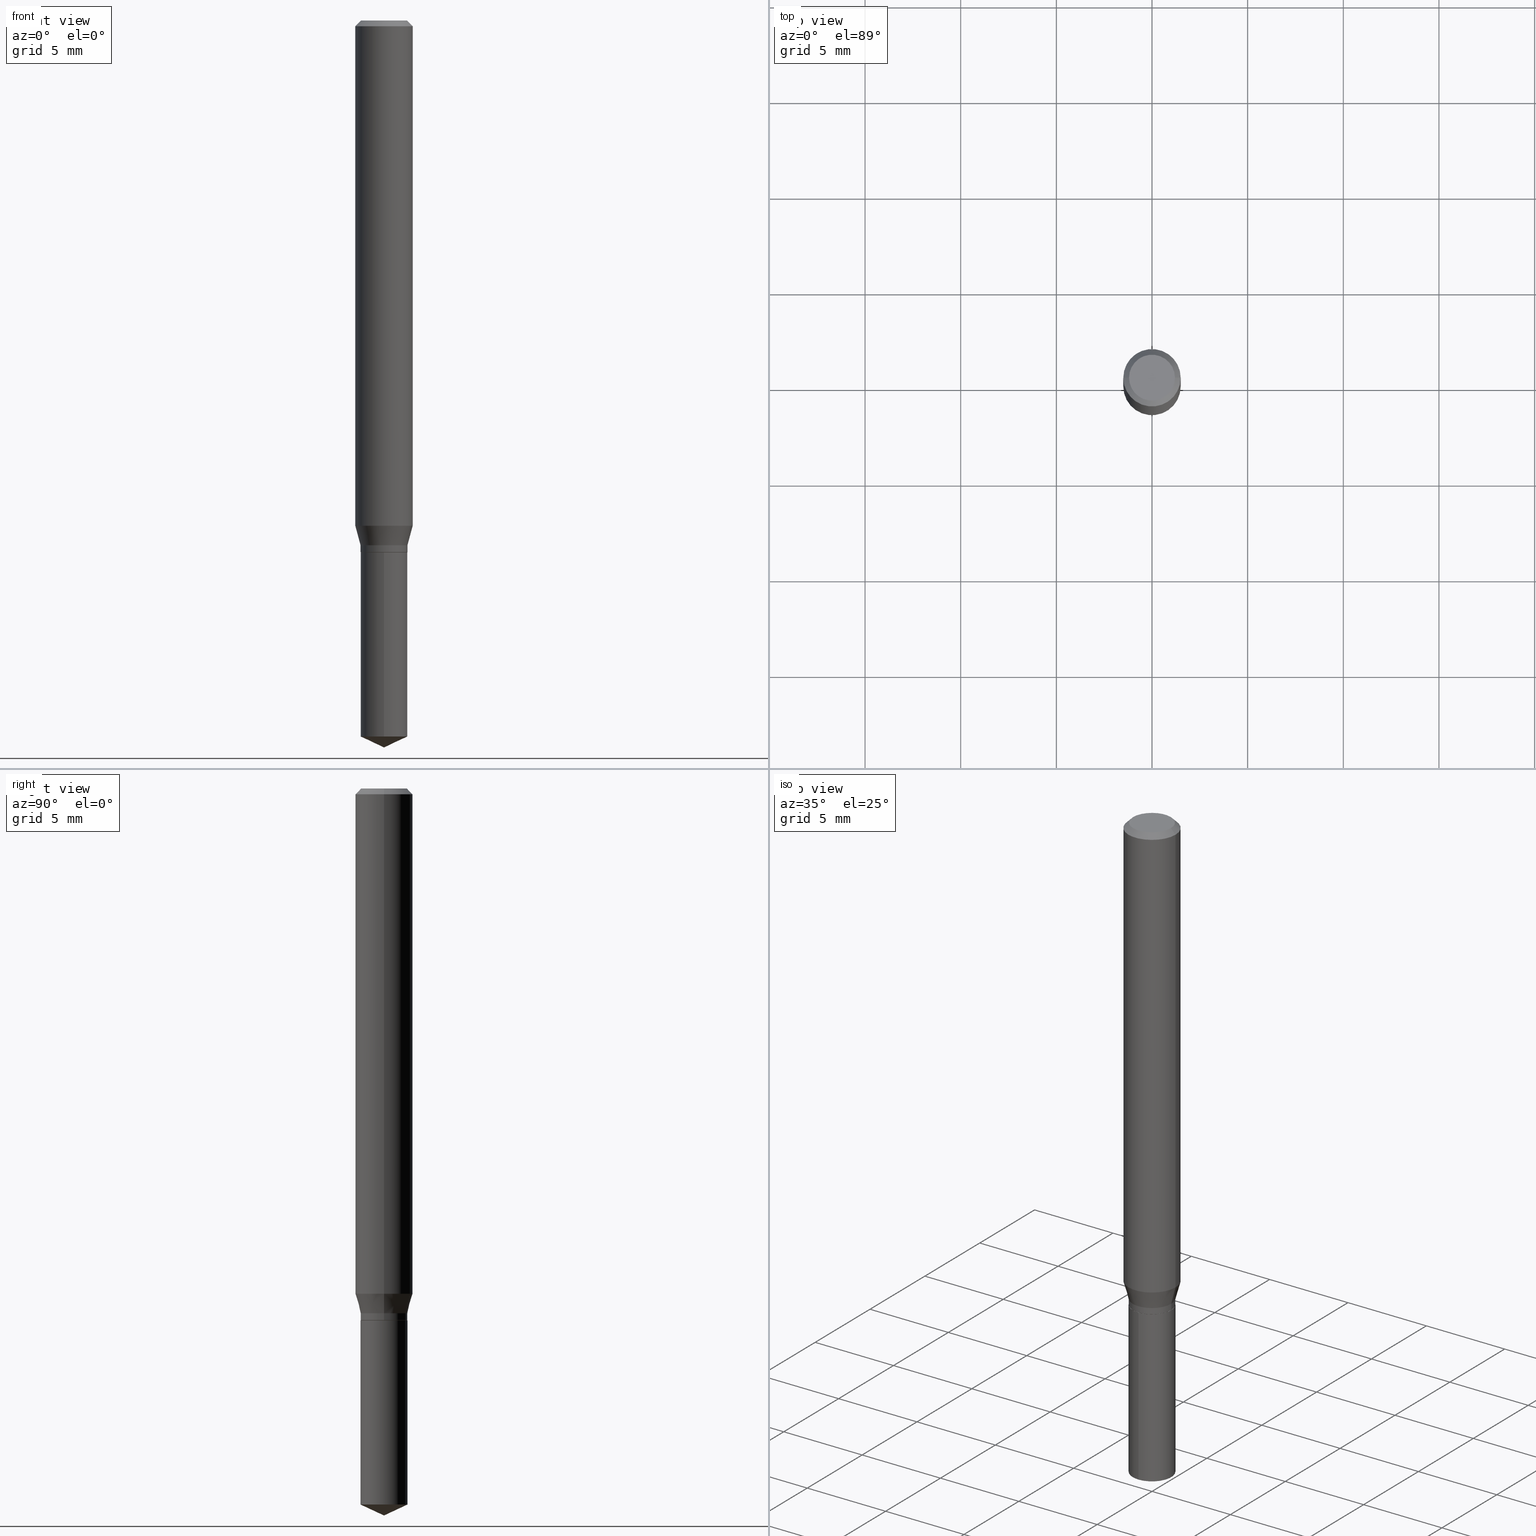
[diagram: canonical four-view strip — front | top / right | iso, engineering-drawing reading convention]
A machine part, canonical four-view strip (front | top / right | iso — engineering-drawing reading convention). The complete STEP part file that produces these views, byte-faithful:
ISO-10303-21;
HEADER;
FILE_DESCRIPTION (( 'STEP AP203' ),
    '1' );
FILE_NAME ('08387.STEP',
    '2024-04-24T14:48:37',
    ( '' ),
    ( '' ),
    'SwSTEP 2.0',
    'SolidWorks 2023',
    '' );
FILE_SCHEMA (( 'CONFIG_CONTROL_DESIGN' ));
ENDSEC;

DATA;
#1 = EDGE_CURVE ( 'NONE', #246, #277, #376, .T. ) ;
#2 = DIRECTION ( 'NONE',  ( -2.445468806185136597E-29, 3.491481338843145583E-15, 1.000000000000000000 ) ) ;
#3 = PLANE ( 'NONE',  #188 ) ;
#4 = VECTOR ( 'NONE', #69, 39.37007874015748143 ) ;
#5 = CARTESIAN_POINT ( 'NONE',  ( 0.05905000000000013016, -4.042415625965365299E-15, -1.039693851278255643 ) ) ;
#6 = APPROVAL ( #57, 'UNSPECIFIED' ) ;
#7 = CARTESIAN_POINT ( 'NONE',  ( 0.04775000000000000078, -4.154862793223341788E-15, -1.094499999999999806 ) ) ;
#8 = DATE_AND_TIME ( #349, #225 ) ;
#9 = ORIENTED_EDGE ( 'NONE', *, *, #34, .T. ) ;
#10 = CARTESIAN_POINT ( 'NONE',  ( -3.369279491983355948E-16, -0.04825000000000382455, -1.094499999999999806 ) ) ;
#11 = APPROVAL_PERSON_ORGANIZATION ( #385, #6, #59 ) ;
#12 = FACE_OUTER_BOUND ( 'NONE', #275, .T. ) ;
#13 = DIMENSIONAL_EXPONENTS ( 1.000000000000000000, 0.000000000000000000, 0.000000000000000000, 0.000000000000000000, 0.000000000000000000, 0.000000000000000000, 0.000000000000000000 ) ;
#14 = EDGE_LOOP ( 'NONE', ( #51, #307, #134, #141 ) ) ;
#15 = CC_DESIGN_PERSON_AND_ORGANIZATION_ASSIGNMENT ( #165, #235, ( #201 ) ) ;
#16 = PERSON_AND_ORGANIZATION ( #138, #317 ) ;
#17 = COORDINATED_UNIVERSAL_TIME_OFFSET ( 5, 0, .BEHIND. ) ;
#18 = CIRCLE ( 'NONE', #366, 0.05904999999999999832 ) ;
#19 = ORIENTED_EDGE ( 'NONE', *, *, #459, .F. ) ;
#20 = DIRECTION ( 'NONE',  ( 1.000000000000000000, -6.982962677686269866E-15, 0.000000000000000000 ) ) ;
#21 = AXIS2_PLACEMENT_3D ( 'NONE', #70, #409, #284 ) ;
#22 = DIRECTION ( 'NONE',  ( -2.445468806185136597E-29, 3.491481338843145583E-15, 1.000000000000000000 ) ) ;
#23 = ORIENTED_EDGE ( 'NONE', *, *, #442, .F. ) ;
#24 = VERTEX_POINT ( 'NONE', #281 ) ;
#25 = ADVANCED_FACE ( 'NONE', ( #440 ), #351, .T. ) ;
#26 = DIRECTION ( 'NONE',  ( 1.000000000000000000, -6.982962677686270655E-15, 0.000000000000000000 ) ) ;
#27 = ORIENTED_EDGE ( 'NONE', *, *, #156, .T. ) ;
#28 = CONICAL_SURFACE ( 'NONE', #278, 0.04824999999999998040, 0.2617993877991501295 ) ;
#29 = LINE ( 'NONE', #248, #310 ) ;
#30 = DIRECTION ( 'NONE',  ( -1.000000000000000000, 6.982962677686265922E-15, -4.876176775795935793E-29 ) ) ;
#31 = CIRCLE ( 'NONE', #292, 0.04825000000000000122 ) ;
#32 = EDGE_LOOP ( 'NONE', ( #193, #58, #267, #199 ) ) ;
#33 = DIRECTION ( 'NONE',  ( -2.445468806185136597E-29, 3.491481338843145583E-15, 1.000000000000000000 ) ) ;
#34 = EDGE_CURVE ( 'NONE', #35, #323, #18, .T. ) ;
#35 = VERTEX_POINT ( 'NONE', #66 ) ;
#36 = CARTESIAN_POINT ( 'NONE',  ( -0.04824999999999998040, -3.427962975946348751E-15, -1.079999999999999849 ) ) ;
#37 = ORIENTED_EDGE ( 'NONE', *, *, #432, .F. ) ;
#38 = CARTESIAN_POINT ( 'NONE',  ( -0.05905000000000013016, -3.210496194381650492E-15, -1.039693851278255643 ) ) ;
#39 = VECTOR ( 'NONE', #377, 39.37007874015747433 ) ;
#40 = ADVANCED_FACE ( 'NONE', ( #367 ), #28, .T. ) ;
#41 = CARTESIAN_POINT ( 'NONE',  ( 0.05905000000000006771, -4.123439461173745257E-16, 2.879382386107503723E-30 ) ) ;
#42 = AXIS2_PLACEMENT_3D ( 'NONE', #122, #33, #447 ) ;
#43 = LINE ( 'NONE', #485, #39 ) ;
#44 = LINE ( 'NONE', #457, #415 ) ;
#45 = CARTESIAN_POINT ( 'NONE',  ( 2.542538881283463133E-29, -3.630071679847990379E-15, -1.039693851278255643 ) ) ;
#46 = AXIS2_PLACEMENT_3D ( 'NONE', #420, #255, #489 ) ;
#47 = ADVANCED_FACE ( 'NONE', ( #314 ), #318, .F. ) ;
#48 = DIRECTION ( 'NONE',  ( -2.445358326776455510E-29, 3.491639551644474585E-15, 1.000000000000000000 ) ) ;
#49 = ORIENTED_EDGE ( 'NONE', *, *, #131, .F. ) ;
#50 = CARTESIAN_POINT ( 'NONE',  ( 2.676565608369631794E-29, -3.821426325363822773E-15, -1.094499999999999806 ) ) ;
#51 = ORIENTED_EDGE ( 'NONE', *, *, #231, .F. ) ;
#52 =( GEOMETRIC_REPRESENTATION_CONTEXT ( 3 ) GLOBAL_UNCERTAINTY_ASSIGNED_CONTEXT ( ( #429 ) ) GLOBAL_UNIT_ASSIGNED_CONTEXT ( ( #333, #328, #228 ) ) REPRESENTATION_CONTEXT ( 'NONE', 'WORKASPACE' ) );
#53 = CARTESIAN_POINT ( 'NONE',  ( 2.888098660104664642E-31, -4.123439461173780879E-17, -0.01181000000000007565 ) ) ;
#54 = PERSON_AND_ORGANIZATION_ROLE ( 'design_supplier' ) ;
#55 = ORIENTED_EDGE ( 'NONE', *, *, #162, .T. ) ;
#56 = DIRECTION ( 'NONE',  ( -2.445358326776455510E-29, 3.491639551644474585E-15, 1.000000000000000000 ) ) ;
#57 = APPROVAL_STATUS ( 'not_yet_approved' ) ;
#58 = ORIENTED_EDGE ( 'NONE', *, *, #332, .T. ) ;
#59 = APPROVAL_ROLE ( '' ) ;
#60 = AXIS2_PLACEMENT_3D ( 'NONE', #463, #240, #264 ) ;
#61 = CIRCLE ( 'NONE', #398, 0.04775000000000000078 ) ;
#62 = PERSON_AND_ORGANIZATION_ROLE ( 'creator' ) ;
#63 = ORIENTED_EDGE ( 'NONE', *, *, #360, .F. ) ;
#64 = CARTESIAN_POINT ( 'NONE',  ( 2.641106310679947278E-29, -3.770799845950596803E-15, -1.079999999999999849 ) ) ;
#65 = EDGE_CURVE ( 'NONE', #311, #486, #327, .T. ) ;
#66 = CARTESIAN_POINT ( 'NONE',  ( 0.05904999999999999832, -4.535783407291118600E-16, -0.01181000000000007565 ) ) ;
#67 = LINE ( 'NONE', #412, #215 ) ;
#68 = EDGE_LOOP ( 'NONE', ( #217, #407 ) ) ;
#69 = DIRECTION ( 'NONE',  ( -2.445468806185136877E-29, 3.491481338843145188E-15, 1.000000000000000000 ) ) ;
#70 = CARTESIAN_POINT ( 'NONE',  ( 0.000000000000000000, 0.000000000000000000, 0.000000000000000000 ) ) ;
#71 = CC_DESIGN_PERSON_AND_ORGANIZATION_ASSIGNMENT ( #435, #392, ( #79 ) ) ;
#72 = CIRCLE ( 'NONE', #336, 0.05904999999999999832 ) ;
#73 = ORIENTED_EDGE ( 'NONE', *, *, #271, .F. ) ;
#74 = DIRECTION ( 'NONE',  ( -6.982962677686267499E-15, -1.000000000000000000, 3.520397390770475169E-15 ) ) ;
#75 = DIRECTION ( 'NONE',  ( -2.445468806185136877E-29, 3.491481338843145188E-15, 1.000000000000000000 ) ) ;
#76 = FACE_OUTER_BOUND ( 'NONE', #180, .T. ) ;
#77 = CIRCLE ( 'NONE', #289, 0.04824999999999998734 ) ;
#78 = MECHANICAL_CONTEXT ( 'NONE', #356, 'mechanical' ) ;
#79 = SECURITY_CLASSIFICATION ( '', '', #464 ) ;
#80 = CARTESIAN_POINT ( 'NONE',  ( 2.676565608369631794E-29, -3.821426325363822773E-15, -1.094499999999999806 ) ) ;
#81 = EDGE_CURVE ( 'NONE', #391, #241, #474, .T. ) ;
#82 = DIRECTION ( 'NONE',  ( -2.445358326776455510E-29, 3.491639551644474585E-15, 1.000000000000000000 ) ) ;
#83 = DIRECTION ( 'NONE',  ( 1.000000000000000000, -6.982962677686267499E-15, 0.000000000000000000 ) ) ;
#84 = AXIS2_PLACEMENT_3D ( 'NONE', #460, #118, #383 ) ;
#85 = ADVANCED_FACE ( 'NONE', ( #308 ), #272, .T. ) ;
#86 = DIRECTION ( 'NONE',  ( 6.982962677686265922E-15, 1.000000000000000000, -3.491639551644474585E-15 ) ) ;
#87 = LOCAL_TIME ( 10, 48, 37.00000000000000000, #295 ) ;
#88 = CARTESIAN_POINT ( 'NONE',  ( -0.04824999999999998734, -3.452403345318250590E-15, -1.093999999999999861 ) ) ;
#89 = CARTESIAN_POINT ( 'NONE',  ( 2.888098660104664642E-31, -4.123439461173780879E-17, -0.01181000000000007565 ) ) ;
#90 = DIRECTION ( 'NONE',  ( 0.7071067811865452413, -7.319954787623248157E-15, -0.7071067811865497932 ) ) ;
#91 = DIRECTION ( 'NONE',  ( -2.445468806185136597E-29, 3.491481338843145583E-15, 1.000000000000000000 ) ) ;
#92 = EDGE_LOOP ( 'NONE', ( #104, #374, #449, #439 ) ) ;
#93 = CARTESIAN_POINT ( 'NONE',  ( 3.428368700042843894E-16, 0.04824999999999617789, -1.094500000000000028 ) ) ;
#94 = AXIS2_PLACEMENT_3D ( 'NONE', #477, #326, #106 ) ;
#95 = EDGE_LOOP ( 'NONE', ( #465, #102, #362, #103 ) ) ;
#96 = EDGE_CURVE ( 'NONE', #246, #323, #44, .T. ) ;
#97 = APPROVAL_DATE_TIME ( #357, #6 ) ;
#98 = VERTEX_POINT ( 'NONE', #189 ) ;
#99 = ORIENTED_EDGE ( 'NONE', *, *, #313, .T. ) ;
#100 = APPROVAL ( #177, 'UNSPECIFIED' ) ;
#101 = CLOSED_SHELL ( 'NONE', ( #25, #340, #252, #280, #113 ) ) ;
#102 = ORIENTED_EDGE ( 'NONE', *, *, #96, .T. ) ;
#103 = ORIENTED_EDGE ( 'NONE', *, *, #466, .F. ) ;
#104 = ORIENTED_EDGE ( 'NONE', *, *, #304, .F. ) ;
#105 = EDGE_CURVE ( 'NONE', #441, #128, #77, .T. ) ;
#106 = DIRECTION ( 'NONE',  ( 1.000000000000000000, -6.982962677686266711E-15, 4.876176775795936353E-29 ) ) ;
#107 = ORIENTED_EDGE ( 'NONE', *, *, #1, .T. ) ;
#108 = DIRECTION ( 'NONE',  ( -2.445468806185136597E-29, 3.491481338843145583E-15, 1.000000000000000000 ) ) ;
#109 = ORIENTED_EDGE ( 'NONE', *, *, #388, .T. ) ;
#110 = LINE ( 'NONE', #222, #190 ) ;
#111 = ORIENTED_EDGE ( 'NONE', *, *, #175, .F. ) ;
#112 = DIRECTION ( 'NONE',  ( -6.982962677686266711E-15, -1.000000000000000000, 2.830930563382656003E-15 ) ) ;
#113 = ADVANCED_FACE ( 'NONE', ( #151 ), #423, .F. ) ;
#114 = CLOSED_SHELL ( 'NONE', ( #85, #378, #195, #40, #261, #263, #413, #365, #436, #47, #187, #182 ) ) ;
#115 = FACE_OUTER_BOUND ( 'NONE', #161, .T. ) ;
#116 = DIRECTION ( 'NONE',  ( 2.445358326776454949E-29, -3.491639551644474585E-15, -1.000000000000000000 ) ) ;
#117 = COORDINATED_UNIVERSAL_TIME_OFFSET ( 5, 0, .BEHIND. ) ;
#118 = DIRECTION ( 'NONE',  ( -2.445358326776455510E-29, 3.491639551644474585E-15, 1.000000000000000000 ) ) ;
#119 = CONICAL_SURFACE ( 'NONE', #389, 0.05904999999999999832, 0.7853981633974450594 ) ;
#120 = DIRECTION ( 'NONE',  ( 0.7071067811865173747, -2.468850131081940727E-15, 0.7071067811865776598 ) ) ;
#121 = EDGE_LOOP ( 'NONE', ( #443, #386, #154, #461 ) ) ;
#122 = CARTESIAN_POINT ( 'NONE',  ( 2.676565608369631794E-29, -3.821426325363822773E-15, -1.094499999999999806 ) ) ;
#123 = ORIENTED_EDGE ( 'NONE', *, *, #105, .T. ) ;
#124 = DESIGN_CONTEXT ( 'detailed design', #430, 'design' ) ;
#125 = CARTESIAN_POINT ( 'NONE',  ( 2.675342873966538993E-29, -3.819680584694400481E-15, -1.093999999999999861 ) ) ;
#126 = AXIS2_PLACEMENT_3D ( 'NONE', #294, #168, #315 ) ;
#127 = ADVANCED_BREP_SHAPE_REPRESENTATION ( '08387', ( #337, #324, #46 ), #52 ) ;
#128 = VERTEX_POINT ( 'NONE', #88 ) ;
#129 = AXIS2_PLACEMENT_3D ( 'NONE', #334, #2, #149 ) ;
#130 = CALENDAR_DATE ( 2024, 24, 4 ) ;
#131 = EDGE_CURVE ( 'NONE', #486, #311, #406, .T. ) ;
#132 = DIRECTION ( 'NONE',  ( -2.445468806185136597E-29, 3.491481338843145583E-15, 1.000000000000000000 ) ) ;
#133 = ORIENTED_EDGE ( 'NONE', *, *, #1, .F. ) ;
#134 = ORIENTED_EDGE ( 'NONE', *, *, #309, .T. ) ;
#135 = PRODUCT_DEFINITION_FORMATION_WITH_SPECIFIED_SOURCE ( 'ANY', '', #201, .NOT_KNOWN. ) ;
#136 = VERTEX_POINT ( 'NONE', #191 ) ;
#137 = DIRECTION ( 'NONE',  ( -2.445358326776455510E-29, 3.491639551644474585E-15, 1.000000000000000000 ) ) ;
#138 = PERSON ( 'UNSPECIFIED', 'UNSPECIFIED', 'UNSPECIFIED', ('UNSPECIFIED'), ('UNSPECIFIED'), ('UNSPECIFIED') ) ;
#139 = ORIENTED_EDGE ( 'NONE', *, *, #484, .F. ) ;
#140 = DIRECTION ( 'NONE',  ( -6.328713451373366223E-15, -0.9063077870366481603, 0.4226182617407031605 ) ) ;
#141 = ORIENTED_EDGE ( 'NONE', *, *, #65, .F. ) ;
#142 = FACE_OUTER_BOUND ( 'NONE', #95, .T. ) ;
#143 = CIRCLE ( 'NONE', #259, 0.04824999999999998040 ) ;
#144 = ORIENTED_EDGE ( 'NONE', *, *, #146, .F. ) ;
#145 = CARTESIAN_POINT ( 'NONE',  ( 3.658744552762151624E-29, -5.223495605393188568E-15, -1.496099999999999985 ) ) ;
#146 = EDGE_CURVE ( 'NONE', #136, #312, #257, .T. ) ;
#147 = AXIS2_PLACEMENT_3D ( 'NONE', #427, #116, #86 ) ;
#148 = CONICAL_SURFACE ( 'NONE', #265, 0.05904999999999999832, 0.7853981633974450594 ) ;
#149 = DIRECTION ( 'NONE',  ( 1.000000000000000000, -6.982962677686270655E-15, 0.000000000000000000 ) ) ;
#150 = CC_DESIGN_PERSON_AND_ORGANIZATION_ASSIGNMENT ( #236, #62, ( #135 ) ) ;
#151 = FACE_OUTER_BOUND ( 'NONE', #68, .T. ) ;
#152 = DIRECTION ( 'NONE',  ( 1.000000000000000000, -6.982962677686265133E-15, 0.000000000000000000 ) ) ;
#153 = VECTOR ( 'NONE', #300, 39.37007874015748143 ) ;
#154 = ORIENTED_EDGE ( 'NONE', *, *, #220, .T. ) ;
#155 = DIRECTION ( 'NONE',  ( -2.445358326776455790E-29, 3.491639551644474585E-15, 1.000000000000000000 ) ) ;
#156 = EDGE_CURVE ( 'NONE', #203, #441, #342, .T. ) ;
#157 = DIRECTION ( 'NONE',  ( -2.445468806185136877E-29, 3.491481338843145188E-15, 1.000000000000000000 ) ) ;
#158 = CALENDAR_DATE ( 2024, 24, 4 ) ;
#159 = CARTESIAN_POINT ( 'NONE',  ( 2.676565608369631794E-29, -3.821426325363822773E-15, -1.094499999999999806 ) ) ;
#160 = VECTOR ( 'NONE', #120, 39.37007874015748143 ) ;
#161 = EDGE_LOOP ( 'NONE', ( #37, #111 ) ) ;
#162 = EDGE_CURVE ( 'NONE', #241, #391, #170, .T. ) ;
#163 = LOCAL_TIME ( 10, 48, 37.00000000000000000, #117 ) ;
#164 = EDGE_LOOP ( 'NONE', ( #123, #372, #23, #329 ) ) ;
#165 = PERSON_AND_ORGANIZATION ( #138, #317 ) ;
#166 = APPROVAL_DATE_TIME ( #482, #100 ) ;
#167 = DIRECTION ( 'NONE',  ( 1.000000000000000000, -6.982962677686266711E-15, 0.000000000000000000 ) ) ;
#168 = DIRECTION ( 'NONE',  ( -2.445468806185136597E-29, 3.491481338843145583E-15, 1.000000000000000000 ) ) ;
#169 = DIRECTION ( 'NONE',  ( 2.438088387897960049E-29, -3.491481338843145188E-15, -1.000000000000000000 ) ) ;
#170 = CIRCLE ( 'NONE', #387, 0.04724000000000000421 ) ;
#171 = CARTESIAN_POINT ( 'NONE',  ( -0.05904999999999999832, -1.416077551763523575E-15, -0.01181000000000007565 ) ) ;
#172 = APPROVAL_PERSON_ORGANIZATION ( #256, #100, #287 ) ;
#173 = DIRECTION ( 'NONE',  ( -2.445468806185136597E-29, 3.491481338843145583E-15, 1.000000000000000000 ) ) ;
#174 = CARTESIAN_POINT ( 'NONE',  ( 2.676565608369631794E-29, -3.821426325363822773E-15, -1.094499999999999806 ) ) ;
#175 = EDGE_CURVE ( 'NONE', #359, #203, #242, .T. ) ;
#176 = ORIENTED_EDGE ( 'NONE', *, *, #309, .F. ) ;
#177 = APPROVAL_STATUS ( 'not_yet_approved' ) ;
#178 = ORIENTED_EDGE ( 'NONE', *, *, #81, .T. ) ;
#179 = DIRECTION ( 'NONE',  ( -6.982962677686266711E-15, -1.000000000000000000, 5.661861126765312006E-15 ) ) ;
#180 = EDGE_LOOP ( 'NONE', ( #437, #364, #286, #133 ) ) ;
#181 = AXIS2_PLACEMENT_3D ( 'NONE', #291, #245, #112 ) ;
#182 = ADVANCED_FACE ( 'NONE', ( #12 ), #345, .T. ) ;
#183 = CARTESIAN_POINT ( 'NONE',  ( 2.641106310679947278E-29, -3.770799845950596803E-15, -1.079999999999999849 ) ) ;
#184 = CYLINDRICAL_SURFACE ( 'NONE', #299, 0.04824999999999998734 ) ;
#185 = AXIS2_PLACEMENT_3D ( 'NONE', #421, #108, #251 ) ;
#186 = DIRECTION ( 'NONE',  ( -2.445468806185136877E-29, 3.491481338843145188E-15, 1.000000000000000000 ) ) ;
#187 = ADVANCED_FACE ( 'NONE', ( #115 ), #3, .F. ) ;
#188 = AXIS2_PLACEMENT_3D ( 'NONE', #401, #285, #341 ) ;
#189 = CARTESIAN_POINT ( 'NONE',  ( 0.04824999999999998040, -4.107727795148959614E-15, -1.079999999999999849 ) ) ;
#190 = VECTOR ( 'NONE', #321, 39.37007874015748143 ) ;
#191 = CARTESIAN_POINT ( 'NONE',  ( -3.369279491983263750E-16, -0.04825000000000515682, -1.473600655494020861 ) ) ;
#192 = DIRECTION ( 'NONE',  ( -6.982962677686266711E-15, -1.000000000000000000, 5.661861126765312006E-15 ) ) ;
#193 = ORIENTED_EDGE ( 'NONE', *, *, #432, .T. ) ;
#194 = FACE_OUTER_BOUND ( 'NONE', #14, .T. ) ;
#195 = ADVANCED_FACE ( 'NONE', ( #142 ), #293, .T. ) ;
#196 = AXIS2_PLACEMENT_3D ( 'NONE', #174, #478, #353 ) ;
#197 = AXIS2_PLACEMENT_3D ( 'NONE', #253, #82, #74 ) ;
#198 = ORIENTED_EDGE ( 'NONE', *, *, #313, .F. ) ;
#199 = ORIENTED_EDGE ( 'NONE', *, *, #156, .F. ) ;
#200 = LINE ( 'NONE', #425, #230 ) ;
#201 = PRODUCT ( '08387', '08387', '', ( #78 ) ) ;
#202 = PERSON_AND_ORGANIZATION_ROLE ( 'creator' ) ;
#203 = VERTEX_POINT ( 'NONE', #254 ) ;
#204 = LINE ( 'NONE', #355, #4 ) ;
#205 = AXIS2_PLACEMENT_3D ( 'NONE', #405, #216, #213 ) ;
#206 = CALENDAR_DATE ( 2024, 24, 4 ) ;
#207 = ORIENTED_EDGE ( 'NONE', *, *, #348, .T. ) ;
#208 = VECTOR ( 'NONE', #417, 39.37007874015748143 ) ;
#209 = ORIENTED_EDGE ( 'NONE', *, *, #146, .T. ) ;
#210 = APPLICATION_PROTOCOL_DEFINITION ( 'international standard', 'config_control_design', 1994, #430 ) ;
#211 = CARTESIAN_POINT ( 'NONE',  ( 2.888098660104664642E-31, -4.123439461173780879E-17, -0.01181000000000007565 ) ) ;
#212 = CC_DESIGN_PERSON_AND_ORGANIZATION_ASSIGNMENT ( #390, #54, ( #135 ) ) ;
#213 = DIRECTION ( 'NONE',  ( -6.982962677686267499E-15, -1.000000000000000000, 3.520397390770475169E-15 ) ) ;
#214 = DIRECTION ( 'NONE',  ( -2.445468806185136597E-29, 3.491481338843145583E-15, 1.000000000000000000 ) ) ;
#215 = VECTOR ( 'NONE', #75, 39.37007874015748143 ) ;
#216 = DIRECTION ( 'NONE',  ( -2.445358326776455510E-29, 3.491639551644474585E-15, 1.000000000000000000 ) ) ;
#217 = ORIENTED_EDGE ( 'NONE', *, *, #131, .T. ) ;
#218 = APPROVAL_ROLE ( '' ) ;
#219 = LINE ( 'NONE', #36, #434 ) ;
#220 = EDGE_CURVE ( 'NONE', #441, #98, #67, .T. ) ;
#221 = ORIENTED_EDGE ( 'NONE', *, *, #175, .T. ) ;
#222 = CARTESIAN_POINT ( 'NONE',  ( -0.04775000000000000078, -3.482142169038374830E-15, -1.094499999999999806 ) ) ;
#223 =( LENGTH_UNIT ( ) NAMED_UNIT ( * ) SI_UNIT ( $, .METRE. ) );
#224 = AXIS2_PLACEMENT_3D ( 'NONE', #279, #169, #30 ) ;
#225 = LOCAL_TIME ( 10, 48, 37.00000000000000000, #431 ) ;
#226 = DIRECTION ( 'NONE',  ( -2.445468806185136597E-29, 3.491481338843145583E-15, 1.000000000000000000 ) ) ;
#227 = CARTESIAN_POINT ( 'NONE',  ( 3.603602552968349358E-29, -5.145109168141093306E-15, -1.473600655494021305 ) ) ;
#228 =( NAMED_UNIT ( * ) SI_UNIT ( $, .STERADIAN. ) SOLID_ANGLE_UNIT ( ) );
#229 = DIRECTION ( 'NONE',  ( 2.445468806185136597E-29, -3.491481338843145583E-15, -1.000000000000000000 ) ) ;
#230 = VECTOR ( 'NONE', #90, 39.37007874015748143 ) ;
#231 = EDGE_CURVE ( 'NONE', #312, #311, #29, .T. ) ;
#232 = DIRECTION ( 'NONE',  ( 1.000000000000000000, -6.982962677686266711E-15, 4.876185090822587894E-29 ) ) ;
#233 = EDGE_LOOP ( 'NONE', ( #290, #107, #243, #238 ) ) ;
#234 = CARTESIAN_POINT ( 'NONE',  ( 3.428368700042844387E-16, 0.04824999999999485950, -1.473600655494021527 ) ) ;
#235 = PERSON_AND_ORGANIZATION_ROLE ( 'design_owner' ) ;
#236 = PERSON_AND_ORGANIZATION ( #138, #317 ) ;
#237 = AXIS2_PLACEMENT_3D ( 'NONE', #159, #56, #270 ) ;
#238 = ORIENTED_EDGE ( 'NONE', *, *, #453, .F. ) ;
#239 = CC_DESIGN_DATE_AND_TIME_ASSIGNMENT ( #8, #397, ( #396 ) ) ;
#240 = DIRECTION ( 'NONE',  ( -2.445468806185136597E-29, 3.491481338843145583E-15, 1.000000000000000000 ) ) ;
#241 = VERTEX_POINT ( 'NONE', #262 ) ;
#242 = CIRCLE ( 'NONE', #298, 0.04775000000000000078 ) ;
#243 = ORIENTED_EDGE ( 'NONE', *, *, #466, .T. ) ;
#244 = CC_DESIGN_DATE_AND_TIME_ASSIGNMENT ( #352, #456, ( #79 ) ) ;
#245 = DIRECTION ( 'NONE',  ( -2.445358326776455510E-29, 3.491639551644474585E-15, 1.000000000000000000 ) ) ;
#246 = VERTEX_POINT ( 'NONE', #38 ) ;
#247 = LINE ( 'NONE', #145, #208 ) ;
#248 = CARTESIAN_POINT ( 'NONE',  ( 3.428368700042750217E-16, 0.04824999999999617789, -1.094500000000000028 ) ) ;
#249 = VERTEX_POINT ( 'NONE', #322 ) ;
#250 = AXIS2_PLACEMENT_3D ( 'NONE', #45, #268, #152 ) ;
#251 = DIRECTION ( 'NONE',  ( 1.000000000000000000, -6.982962677686266711E-15, 4.876176775795936353E-29 ) ) ;
#252 = ADVANCED_FACE ( 'NONE', ( #288 ), #424, .T. ) ;
#253 = CARTESIAN_POINT ( 'NONE',  ( -9.261532836068574158E-28, 1.322424553111868898E-13, 37.87397874015748300 ) ) ;
#254 = CARTESIAN_POINT ( 'NONE',  ( 0.04775000000000000078, -4.154862793223341788E-15, -1.094499999999999806 ) ) ;
#255 = DIRECTION ( 'NONE',  ( 0.000000000000000000, 0.000000000000000000, 1.000000000000000000 ) ) ;
#256 = PERSON_AND_ORGANIZATION ( #138, #317 ) ;
#257 = CIRCLE ( 'NONE', #316, 0.04825000000000000122 ) ;
#258 = FACE_OUTER_BOUND ( 'NONE', #320, .T. ) ;
#259 = AXIS2_PLACEMENT_3D ( 'NONE', #183, #488, #414 ) ;
#260 = LENGTH_MEASURE_WITH_UNIT ( LENGTH_MEASURE( 0.02539999999999999897 ), #223 );
#261 = ADVANCED_FACE ( 'NONE', ( #335 ), #184, .T. ) ;
#262 = CARTESIAN_POINT ( 'NONE',  ( -0.04724000000000000421, 3.504923541997677355E-16, -3.380025165670481712E-19 ) ) ;
#263 = ADVANCED_FACE ( 'NONE', ( #455 ), #481, .T. ) ;
#264 = DIRECTION ( 'NONE',  ( 1.000000000000000000, -6.982962677686267499E-15, 0.000000000000000000 ) ) ;
#265 = AXIS2_PLACEMENT_3D ( 'NONE', #411, #490, #370 ) ;
#266 = CARTESIAN_POINT ( 'NONE',  ( 8.265746106709734507E-48, -1.180129479067563789E-33, -3.380025165646692144E-19 ) ) ;
#267 = ORIENTED_EDGE ( 'NONE', *, *, #105, .F. ) ;
#268 = DIRECTION ( 'NONE',  ( -2.445468806185136597E-29, 3.491481338843145583E-15, 1.000000000000000000 ) ) ;
#269 = EDGE_LOOP ( 'NONE', ( #55, #178 ) ) ;
#270 = DIRECTION ( 'NONE',  ( -6.982962677686266711E-15, -1.000000000000000000, 2.830930563382656003E-15 ) ) ;
#271 = EDGE_CURVE ( 'NONE', #128, #441, #369, .T. ) ;
#272 = CONICAL_SURFACE ( 'NONE', #60, 0.04775000000000000078, 0.7853981633974056464 ) ;
#273 = DIRECTION ( 'NONE',  ( -2.445468806185136597E-29, 3.491481338843145583E-15, 1.000000000000000000 ) ) ;
#274 = DIRECTION ( 'NONE',  ( -2.445468806185136597E-29, 3.491481338843145583E-15, 1.000000000000000000 ) ) ;
#275 = EDGE_LOOP ( 'NONE', ( #343, #221, #27, #73 ) ) ;
#276 = APPROVAL_DATE_TIME ( #472, #475 ) ;
#277 = VERTEX_POINT ( 'NONE', #5 ) ;
#278 = AXIS2_PLACEMENT_3D ( 'NONE', #363, #22, #26 ) ;
#279 = CARTESIAN_POINT ( 'NONE',  ( 4.132873053354867254E-48, -5.900647395337818946E-34, -1.690012582823346072E-19 ) ) ;
#280 = ADVANCED_FACE ( 'NONE', ( #194 ), #462, .T. ) ;
#281 = CARTESIAN_POINT ( 'NONE',  ( 3.658500592690254185E-29, -5.223841933215297403E-15, -1.496099999999999985 ) ) ;
#282 = LOCAL_TIME ( 10, 48, 37.00000000000000000, #17 ) ;
#283 = ORIENTED_EDGE ( 'NONE', *, *, #231, .T. ) ;
#284 = DIRECTION ( 'NONE',  ( 1.000000000000000000, -6.982962677686266711E-15, 4.876176775795936353E-29 ) ) ;
#285 = DIRECTION ( 'NONE',  ( -2.438088387897960049E-29, 3.491481338843145188E-15, 1.000000000000000000 ) ) ;
#286 = ORIENTED_EDGE ( 'NONE', *, *, #459, .T. ) ;
#287 = APPROVAL_ROLE ( '' ) ;
#288 = FACE_OUTER_BOUND ( 'NONE', #400, .T. ) ;
#289 = AXIS2_PLACEMENT_3D ( 'NONE', #125, #274, #339 ) ;
#290 = ORIENTED_EDGE ( 'NONE', *, *, #96, .F. ) ;
#291 = CARTESIAN_POINT ( 'NONE',  ( 2.676565608369631794E-29, -3.821426325363822773E-15, -1.094499999999999806 ) ) ;
#292 = AXIS2_PLACEMENT_3D ( 'NONE', #227, #137, #179 ) ;
#293 = CYLINDRICAL_SURFACE ( 'NONE', #94, 0.05905000000000006771 ) ;
#294 = CARTESIAN_POINT ( 'NONE',  ( 2.542538881283463133E-29, -3.630071679847990379E-15, -1.039693851278255643 ) ) ;
#295 = COORDINATED_UNIVERSAL_TIME_OFFSET ( 5, 0, .BEHIND. ) ;
#296 = FACE_OUTER_BOUND ( 'NONE', #483, .T. ) ;
#297 = LINE ( 'NONE', #41, #408 ) ;
#298 = AXIS2_PLACEMENT_3D ( 'NONE', #50, #347, #306 ) ;
#299 = AXIS2_PLACEMENT_3D ( 'NONE', #371, #173, #444 ) ;
#300 = DIRECTION ( 'NONE',  ( -0.7071067811865452413, 2.468850131082233000E-15, -0.7071067811865497932 ) ) ;
#301 = DIRECTION ( 'NONE',  ( -1.000000000000000000, 6.982962677686266711E-15, 0.000000000000000000 ) ) ;
#302 = DIRECTION ( 'NONE',  ( -2.445358326776455790E-29, 3.491639551644474585E-15, 1.000000000000000000 ) ) ;
#303 = DIRECTION ( 'NONE',  ( 1.000000000000000000, -6.982962677686266711E-15, 4.876185090822587894E-29 ) ) ;
#304 = EDGE_CURVE ( 'NONE', #391, #35, #200, .T. ) ;
#305 = VECTOR ( 'NONE', #155, 39.37007874015748143 ) ;
#306 = DIRECTION ( 'NONE',  ( 1.000000000000000000, -6.982962677686267499E-15, 0.000000000000000000 ) ) ;
#307 = ORIENTED_EDGE ( 'NONE', *, *, #360, .T. ) ;
#308 = FACE_OUTER_BOUND ( 'NONE', #32, .T. ) ;
#309 = EDGE_CURVE ( 'NONE', #136, #486, #344, .T. ) ;
#310 = VECTOR ( 'NONE', #302, 39.37007874015748143 ) ;
#311 = VERTEX_POINT ( 'NONE', #93 ) ;
#312 = VERTEX_POINT ( 'NONE', #234 ) ;
#313 = EDGE_CURVE ( 'NONE', #24, #136, #480, .T. ) ;
#314 = FACE_OUTER_BOUND ( 'NONE', #269, .T. ) ;
#315 = DIRECTION ( 'NONE',  ( 1.000000000000000000, -6.982962677686265133E-15, 0.000000000000000000 ) ) ;
#316 = AXIS2_PLACEMENT_3D ( 'NONE', #384, #48, #192 ) ;
#317 = ORGANIZATION ( 'UNSPECIFIED', 'UNSPECIFIED', '' ) ;
#318 = PLANE ( 'NONE',  #224 ) ;
#319 = CC_DESIGN_PERSON_AND_ORGANIZATION_ASSIGNMENT ( #469, #202, ( #396 ) ) ;
#320 = EDGE_LOOP ( 'NONE', ( #198, #207, #144 ) ) ;
#321 = DIRECTION ( 'NONE',  ( -0.7071067811865173747, 7.493145998870245297E-15, 0.7071067811865776598 ) ) ;
#322 = CARTESIAN_POINT ( 'NONE',  ( -0.04824999999999998040, -3.452403345318250590E-15, -1.079999999999999849 ) ) ;
#323 = VERTEX_POINT ( 'NONE', #171 ) ;
#324 = MANIFOLD_SOLID_BREP ( 'Body-Move/Copy2[2]', #114 ) ;
#325 = DIRECTION ( 'NONE',  ( -0.2588190451025214611, 5.211531920934551042E-15, 0.9659258262890682012 ) ) ;
#326 = DIRECTION ( 'NONE',  ( -2.445468806185136597E-29, 3.491481338843145583E-15, 1.000000000000000000 ) ) ;
#327 = CIRCLE ( 'NONE', #196, 0.04825000000000000122 ) ;
#328 =( NAMED_UNIT ( * ) PLANE_ANGLE_UNIT ( ) SI_UNIT ( $, .RADIAN. ) );
#329 = ORIENTED_EDGE ( 'NONE', *, *, #220, .F. ) ;
#330 = CARTESIAN_POINT ( 'NONE',  ( -3.369279491983355948E-16, -0.04825000000000382455, -1.094499999999999806 ) ) ;
#331 = CARTESIAN_POINT ( 'NONE',  ( 3.658500592690254185E-29, -5.223841933215297403E-15, -1.496099999999999985 ) ) ;
#332 = EDGE_CURVE ( 'NONE', #359, #128, #110, .T. ) ;
#333 =( CONVERSION_BASED_UNIT ( 'INCH', #260 ) LENGTH_UNIT ( ) NAMED_UNIT ( #13 ) );
#334 = CARTESIAN_POINT ( 'NONE',  ( 2.641106310679947278E-29, -3.770799845950596803E-15, -1.079999999999999849 ) ) ;
#335 = FACE_OUTER_BOUND ( 'NONE', #164, .T. ) ;
#336 = AXIS2_PLACEMENT_3D ( 'NONE', #53, #273, #422 ) ;
#337 = MANIFOLD_SOLID_BREP ( 'Body-Move/Copy2[1]', #101 ) ;
#338 = LINE ( 'NONE', #452, #153 ) ;
#339 = DIRECTION ( 'NONE',  ( 1.000000000000000000, -6.982962677686269866E-15, 0.000000000000000000 ) ) ;
#340 = ADVANCED_FACE ( 'NONE', ( #258 ), #458, .T. ) ;
#341 = DIRECTION ( 'NONE',  ( 1.000000000000000000, -6.982962677686265922E-15, 4.876176775795935793E-29 ) ) ;
#342 = LINE ( 'NONE', #7, #160 ) ;
#343 = ORIENTED_EDGE ( 'NONE', *, *, #332, .F. ) ;
#344 = LINE ( 'NONE', #10, #305 ) ;
#345 = CONICAL_SURFACE ( 'NONE', #42, 0.04775000000000000078, 0.7853981633974056464 ) ;
#346 = APPROVAL_PERSON_ORGANIZATION ( #16, #475, #218 ) ;
#347 = DIRECTION ( 'NONE',  ( -2.445468806185136597E-29, 3.491481338843145583E-15, 1.000000000000000000 ) ) ;
#348 = EDGE_CURVE ( 'NONE', #24, #312, #247, .T. ) ;
#349 = CALENDAR_DATE ( 2024, 24, 4 ) ;
#350 = ORIENTED_EDGE ( 'NONE', *, *, #304, .T. ) ;
#351 = CYLINDRICAL_SURFACE ( 'NONE', #181, 0.04825000000000000122 ) ;
#352 = DATE_AND_TIME ( #206, #163 ) ;
#353 = DIRECTION ( 'NONE',  ( -6.982962677686266711E-15, -1.000000000000000000, 2.830930563382656003E-15 ) ) ;
#354 = DIRECTION ( 'NONE',  ( -2.445468806185136597E-29, 3.491481338843145583E-15, 1.000000000000000000 ) ) ;
#355 = CARTESIAN_POINT ( 'NONE',  ( -0.04824999999999998734, 3.428368700042482498E-16, -2.373386181047991545E-30 ) ) ;
#356 = APPLICATION_CONTEXT ( 'configuration controlled 3d designs of mechanical parts and assemblies' ) ;
#357 = DATE_AND_TIME ( #158, #282 ) ;
#358 = CC_DESIGN_SECURITY_CLASSIFICATION ( #79, ( #135 ) ) ;
#359 = VERTEX_POINT ( 'NONE', #446 ) ;
#360 = EDGE_CURVE ( 'NONE', #312, #136, #31, .T. ) ;
#361 = COORDINATED_UNIVERSAL_TIME_OFFSET ( 5, 0, .BEHIND. ) ;
#362 = ORIENTED_EDGE ( 'NONE', *, *, #34, .F. ) ;
#363 = CARTESIAN_POINT ( 'NONE',  ( 2.641106310679947278E-29, -3.770799845950596803E-15, -1.079999999999999849 ) ) ;
#364 = ORIENTED_EDGE ( 'NONE', *, *, #404, .T. ) ;
#365 = ADVANCED_FACE ( 'NONE', ( #450 ), #403, .T. ) ;
#366 = AXIS2_PLACEMENT_3D ( 'NONE', #211, #214, #167 ) ;
#367 = FACE_OUTER_BOUND ( 'NONE', #393, .T. ) ;
#368 = ORIENTED_EDGE ( 'NONE', *, *, #448, .F. ) ;
#369 = CIRCLE ( 'NONE', #426, 0.04824999999999998734 ) ;
#370 = DIRECTION ( 'NONE',  ( -1.000000000000000000, 6.982962677686266711E-15, 0.000000000000000000 ) ) ;
#371 = CARTESIAN_POINT ( 'NONE',  ( 0.000000000000000000, 0.000000000000000000, 0.000000000000000000 ) ) ;
#372 = ORIENTED_EDGE ( 'NONE', *, *, #418, .T. ) ;
#373 = APPLICATION_PROTOCOL_DEFINITION ( 'international standard', 'config_control_design', 1994, #356 ) ;
#374 = ORIENTED_EDGE ( 'NONE', *, *, #162, .F. ) ;
#375 = CARTESIAN_POINT ( 'NONE',  ( 0.04724000000000000421, -3.852183633974369345E-16, -3.380025165621689721E-19 ) ) ;
#376 = CIRCLE ( 'NONE', #126, 0.05905000000000013016 ) ;
#377 = DIRECTION ( 'NONE',  ( 0.2588190451025214611, 1.565188264969621573E-15, 0.9659258262890682012 ) ) ;
#378 = ADVANCED_FACE ( 'NONE', ( #296 ), #148, .T. ) ;
#379 = CIRCLE ( 'NONE', #250, 0.05905000000000013016 ) ;
#380 = CARTESIAN_POINT ( 'NONE',  ( 0.04824999999999998734, -4.156608533892763291E-15, -1.093999999999999861 ) ) ;
#381 = PRODUCT_RELATED_PRODUCT_CATEGORY ( 'detail', '', ( #201 ) ) ;
#382 = CC_DESIGN_APPROVAL ( #6, ( #135 ) ) ;
#383 = DIRECTION ( 'NONE',  ( -6.982962677686266711E-15, -1.000000000000000000, 2.830930563382656003E-15 ) ) ;
#384 = CARTESIAN_POINT ( 'NONE',  ( 3.603602552968349358E-29, -5.145109168141093306E-15, -1.473600655494021305 ) ) ;
#385 = PERSON_AND_ORGANIZATION ( #138, #317 ) ;
#386 = ORIENTED_EDGE ( 'NONE', *, *, #271, .T. ) ;
#387 = AXIS2_PLACEMENT_3D ( 'NONE', #266, #91, #232 ) ;
#388 = EDGE_CURVE ( 'NONE', #249, #246, #219, .T. ) ;
#389 = AXIS2_PLACEMENT_3D ( 'NONE', #89, #229, #301 ) ;
#390 = PERSON_AND_ORGANIZATION ( #138, #317 ) ;
#391 = VERTEX_POINT ( 'NONE', #375 ) ;
#392 = PERSON_AND_ORGANIZATION_ROLE ( 'classification_officer' ) ;
#393 = EDGE_LOOP ( 'NONE', ( #473, #109, #368, #19 ) ) ;
#394 = DIRECTION ( 'NONE',  ( 1.000000000000000000, -6.982962677686270655E-15, 0.000000000000000000 ) ) ;
#395 = CARTESIAN_POINT ( 'NONE',  ( 8.265746106709734507E-48, -1.180129479067563789E-33, -3.380025165646692144E-19 ) ) ;
#396 = PRODUCT_DEFINITION ( 'UNKNOWN', '', #135, #124 ) ;
#397 = DATE_TIME_ROLE ( 'creation_date' ) ;
#398 = AXIS2_PLACEMENT_3D ( 'NONE', #80, #226, #83 ) ;
#399 = CIRCLE ( 'NONE', #129, 0.04824999999999998040 ) ;
#400 = EDGE_LOOP ( 'NONE', ( #479, #99, #63 ) ) ;
#401 = CARTESIAN_POINT ( 'NONE',  ( 2.676565608369631794E-29, -3.821426325363822773E-15, -1.094499999999999806 ) ) ;
#402 = EDGE_LOOP ( 'NONE', ( #209, #283, #49, #176 ) ) ;
#403 = CYLINDRICAL_SURFACE ( 'NONE', #21, 0.05905000000000006771 ) ;
#404 = EDGE_CURVE ( 'NONE', #249, #98, #143, .T. ) ;
#405 = CARTESIAN_POINT ( 'NONE',  ( -9.261532836068574158E-28, 1.322424553111868898E-13, 37.87397874015748300 ) ) ;
#406 = CIRCLE ( 'NONE', #84, 0.04825000000000000122 ) ;
#407 = ORIENTED_EDGE ( 'NONE', *, *, #65, .T. ) ;
#408 = VECTOR ( 'NONE', #186, 39.37007874015748143 ) ;
#409 = DIRECTION ( 'NONE',  ( -2.445468806185136597E-29, 3.491481338843145583E-15, 1.000000000000000000 ) ) ;
#410 = CARTESIAN_POINT ( 'NONE',  ( 2.675342873966538993E-29, -3.819680584694400481E-15, -1.093999999999999861 ) ) ;
#411 = CARTESIAN_POINT ( 'NONE',  ( 2.888098660104664642E-31, -4.123439461173780879E-17, -0.01181000000000007565 ) ) ;
#412 = CARTESIAN_POINT ( 'NONE',  ( 0.04824999999999998734, -3.369279491983622682E-16, 2.352755294321538586E-30 ) ) ;
#413 = ADVANCED_FACE ( 'NONE', ( #76 ), #468, .T. ) ;
#414 = DIRECTION ( 'NONE',  ( 1.000000000000000000, -6.982962677686270655E-15, 0.000000000000000000 ) ) ;
#415 = VECTOR ( 'NONE', #157, 39.37007874015748143 ) ;
#416 = LOCAL_TIME ( 10, 48, 37.00000000000000000, #361 ) ;
#417 = DIRECTION ( 'NONE',  ( 6.439704144417022464E-15, 0.9063077870366512689, 0.4226182617406968323 ) ) ;
#418 = EDGE_CURVE ( 'NONE', #128, #249, #204, .T. ) ;
#419 = PRODUCT_DEFINITION_SHAPE ( 'NONE', 'NONE',  #396 ) ;
#420 = CARTESIAN_POINT ( 'NONE',  ( 0.000000000000000000, 0.000000000000000000, 0.000000000000000000 ) ) ;
#421 = CARTESIAN_POINT ( 'NONE',  ( 0.000000000000000000, 0.000000000000000000, 0.000000000000000000 ) ) ;
#422 = DIRECTION ( 'NONE',  ( 1.000000000000000000, -6.982962677686266711E-15, 0.000000000000000000 ) ) ;
#423 = PLANE ( 'NONE',  #147 ) ;
#424 = CONICAL_SURFACE ( 'NONE', #205, 84.42940631927382356, 1.134464013796313564 ) ;
#425 = CARTESIAN_POINT ( 'NONE',  ( 0.05904999999999999832, -4.463468013801466955E-16, -0.01181000000000007565 ) ) ;
#426 = AXIS2_PLACEMENT_3D ( 'NONE', #410, #354, #20 ) ;
#427 = CARTESIAN_POINT ( 'NONE',  ( 2.676565608369631794E-29, -3.821426325363822773E-15, -1.094499999999999806 ) ) ;
#428 = FACE_OUTER_BOUND ( 'NONE', #92, .T. ) ;
#429 = UNCERTAINTY_MEASURE_WITH_UNIT (LENGTH_MEASURE( 1.000000000000000082E-05 ), #333, 'distance_accuracy_value', 'NONE');
#430 = APPLICATION_CONTEXT ( 'configuration controlled 3d designs of mechanical parts and assemblies' ) ;
#431 = COORDINATED_UNIVERSAL_TIME_OFFSET ( 5, 0, .BEHIND. ) ;
#432 = EDGE_CURVE ( 'NONE', #203, #359, #61, .T. ) ;
#433 = AXIS2_PLACEMENT_3D ( 'NONE', #395, #132, #303 ) ;
#434 = VECTOR ( 'NONE', #325, 39.37007874015747433 ) ;
#435 = PERSON_AND_ORGANIZATION ( #138, #317 ) ;
#436 = ADVANCED_FACE ( 'NONE', ( #428 ), #119, .T. ) ;
#437 = ORIENTED_EDGE ( 'NONE', *, *, #388, .F. ) ;
#438 = SHAPE_DEFINITION_REPRESENTATION ( #419, #127 ) ;
#439 = ORIENTED_EDGE ( 'NONE', *, *, #453, .T. ) ;
#440 = FACE_OUTER_BOUND ( 'NONE', #402, .T. ) ;
#441 = VERTEX_POINT ( 'NONE', #380 ) ;
#442 = EDGE_CURVE ( 'NONE', #98, #249, #399, .T. ) ;
#443 = ORIENTED_EDGE ( 'NONE', *, *, #418, .F. ) ;
#444 = DIRECTION ( 'NONE',  ( 1.000000000000000000, -6.982962677686266711E-15, 4.876176775795936353E-29 ) ) ;
#445 = CC_DESIGN_APPROVAL ( #475, ( #79 ) ) ;
#446 = CARTESIAN_POINT ( 'NONE',  ( -0.04775000000000000078, -3.479492941864263629E-15, -1.094499999999999806 ) ) ;
#447 = DIRECTION ( 'NONE',  ( 1.000000000000000000, -6.982962677686267499E-15, 0.000000000000000000 ) ) ;
#448 = EDGE_CURVE ( 'NONE', #277, #246, #379, .T. ) ;
#449 = ORIENTED_EDGE ( 'NONE', *, *, #484, .T. ) ;
#450 = FACE_OUTER_BOUND ( 'NONE', #233, .T. ) ;
#451 = CALENDAR_DATE ( 2024, 24, 4 ) ;
#452 = CARTESIAN_POINT ( 'NONE',  ( -0.05904999999999999832, 3.711095515056362547E-16, -0.01181000000000007565 ) ) ;
#453 = EDGE_CURVE ( 'NONE', #323, #35, #72, .T. ) ;
#454 = CC_DESIGN_APPROVAL ( #100, ( #396 ) ) ;
#455 = FACE_OUTER_BOUND ( 'NONE', #121, .T. ) ;
#456 = DATE_TIME_ROLE ( 'classification_date' ) ;
#457 = CARTESIAN_POINT ( 'NONE',  ( -0.05905000000000006771, 4.195754854663396409E-16, -2.904631170795525045E-30 ) ) ;
#458 = CONICAL_SURFACE ( 'NONE', #197, 84.42940631927382356, 1.134464013796313564 ) ;
#459 = EDGE_CURVE ( 'NONE', #98, #277, #43, .T. ) ;
#460 = CARTESIAN_POINT ( 'NONE',  ( 2.676565608369631794E-29, -3.821426325363822773E-15, -1.094499999999999806 ) ) ;
#461 = ORIENTED_EDGE ( 'NONE', *, *, #404, .F. ) ;
#462 = CYLINDRICAL_SURFACE ( 'NONE', #237, 0.04825000000000000122 ) ;
#463 = CARTESIAN_POINT ( 'NONE',  ( 2.676565608369631794E-29, -3.821426325363822773E-15, -1.094499999999999806 ) ) ;
#464 = SECURITY_CLASSIFICATION_LEVEL ( 'unclassified' ) ;
#465 = ORIENTED_EDGE ( 'NONE', *, *, #448, .T. ) ;
#466 = EDGE_CURVE ( 'NONE', #277, #35, #297, .T. ) ;
#467 = APPROVAL_STATUS ( 'not_yet_approved' ) ;
#468 = CONICAL_SURFACE ( 'NONE', #476, 0.04824999999999998040, 0.2617993877991501295 ) ;
#469 = PERSON_AND_ORGANIZATION ( #138, #317 ) ;
#470 = ORIENTED_EDGE ( 'NONE', *, *, #81, .F. ) ;
#471 = DIRECTION ( 'NONE',  ( -2.445468806185136597E-29, 3.491481338843145583E-15, 1.000000000000000000 ) ) ;
#472 = DATE_AND_TIME ( #130, #416 ) ;
#473 = ORIENTED_EDGE ( 'NONE', *, *, #442, .T. ) ;
#474 = CIRCLE ( 'NONE', #433, 0.04724000000000000421 ) ;
#475 = APPROVAL ( #467, 'UNSPECIFIED' ) ;
#476 = AXIS2_PLACEMENT_3D ( 'NONE', #64, #471, #394 ) ;
#477 = CARTESIAN_POINT ( 'NONE',  ( 0.000000000000000000, 0.000000000000000000, 0.000000000000000000 ) ) ;
#478 = DIRECTION ( 'NONE',  ( -2.445358326776455510E-29, 3.491639551644474585E-15, 1.000000000000000000 ) ) ;
#479 = ORIENTED_EDGE ( 'NONE', *, *, #348, .F. ) ;
#480 = LINE ( 'NONE', #331, #487 ) ;
#481 = CYLINDRICAL_SURFACE ( 'NONE', #185, 0.04824999999999998734 ) ;
#482 = DATE_AND_TIME ( #451, #87 ) ;
#483 = EDGE_LOOP ( 'NONE', ( #470, #350, #9, #139 ) ) ;
#484 = EDGE_CURVE ( 'NONE', #241, #323, #338, .T. ) ;
#485 = CARTESIAN_POINT ( 'NONE',  ( 0.04824999999999998040, -4.107727795148959614E-15, -1.079999999999999849 ) ) ;
#486 = VERTEX_POINT ( 'NONE', #330 ) ;
#487 = VECTOR ( 'NONE', #140, 39.37007874015748854 ) ;
#488 = DIRECTION ( 'NONE',  ( -2.445468806185136597E-29, 3.491481338843145583E-15, 1.000000000000000000 ) ) ;
#489 = DIRECTION ( 'NONE',  ( 1.000000000000000000, 0.000000000000000000, 0.000000000000000000 ) ) ;
#490 = DIRECTION ( 'NONE',  ( 2.445468806185136597E-29, -3.491481338843145583E-15, -1.000000000000000000 ) ) ;
ENDSEC;
END-ISO-10303-21;
